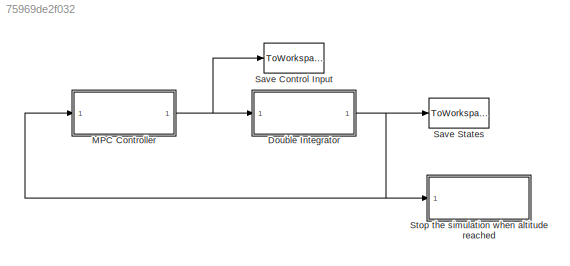
MODEL slx_75969de2f032
KIND model
CONFIG AbsTol = auto
CONFIG EnableMultiTasking = off
CONFIG FixedStep = tstep
CONFIG InitFcn = initSim;
CONFIG MaxStep = auto
CONFIG MinStep = auto
CONFIG RelTol = 1e-3
CONFIG SampleTimeConstraint = Unconstrained
CONFIG Solver = ode1
CONFIG SolverName = ode1
CONFIG StartTime = 0.0
CONFIG StopFcn = plotSimSolution;
CONFIG StopTime = 6
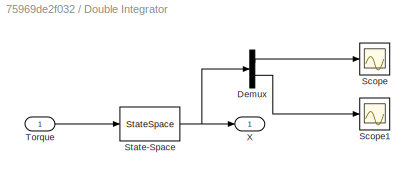
BLOCK [SubSystem] Double Integrator
  Ports = [1, 1]
  RequestExecContextInheritance = off
BLOCK [Demux] Double Integrator/Demux
  DisplayOption = bar
  Outputs = 2
  Ports = [1, 2]
BLOCK [Scope] Double Integrator/Scope
  Floating = off
  NumInputPorts = 1
  Ports = [1]
  ScopeSpecificationString = Simulink.scopes.TimeScopeBlockCfg('CurrentConfiguration', extmgr.ConfigurationSet(extmgr.Configuration('Core','General UI',true),extmgr.Configuration('Core','Source UI',true),extmgr.Configuration('Sources','WiredSimulink',true),extmgr.Configuration('Visuals','Time Domain',true,'SerializedDisplays',{struct('MinYLimReal','-0.6125','MaxYLimReal','5.5125','YLabelReal','','MinYLimMag','0.00000','MaxYLi...<+1348ch>
BLOCK [Scope] Double Integrator/Scope1
  Floating = off
  NumInputPorts = 1
  Ports = [1]
  ScopeSpecificationString = Simulink.scopes.TimeScopeBlockCfg('CurrentConfiguration', extmgr.ConfigurationSet(extmgr.Configuration('Core','General UI',true),extmgr.Configuration('Core','Source UI',true),extmgr.Configuration('Sources','WiredSimulink',true,'DataLoggingVariableName','ScopeData1'),extmgr.Configuration('Visuals','Time Domain',true),extmgr.Configuration('Tools','Plot Navigation',true),extmgr.Configuration('Tools',...<+40ch>
BLOCK [StateSpace] Double Integrator/State-Space
  A = [0 1;0 0]
  B = [0;1]
  C = [1 0;0 1]
  D = [0;0]
  InitialCondition = 0
  Ports = [1, 1]
BLOCK [Inport] Double Integrator/Torque
  IconDisplay = Port number
BLOCK [Outport] Double Integrator/X
  IconDisplay = Port number
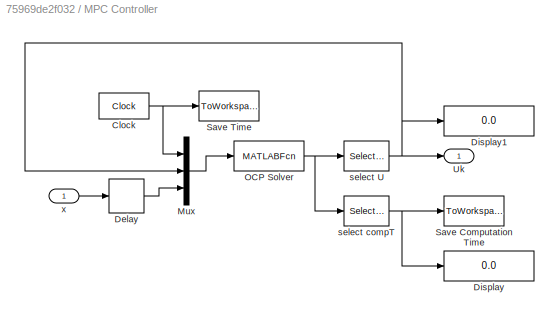
BLOCK [SubSystem] MPC Controller 
  Ports = [1, 1]
  RequestExecContextInheritance = off
BLOCK [Clock] MPC Controller /Clock
  DisplayTime = on
BLOCK [Delay] MPC Controller /Delay
  DelayLength = 1
  InitialCondition = [problem.states.x0]
  InputPortMap = u0
  Ports = [1, 1]
BLOCK [Display] MPC Controller /Display
  Decimation = 1
  Ports = [1]
BLOCK [Display] MPC Controller /Display1
  Decimation = 1
  Ports = [1]
BLOCK [Mux] MPC Controller /Mux
  DisplayOption = bar
  Inputs = 3
  Ports = [3, 1]
BLOCK [MATLABFcn] MPC Controller /OCP Solver
  MATLABFcn = ICLOCS_NLPSolver
  OutputDimensions = m+2
  Ports = [1, 1]
BLOCK [ToWorkspace] MPC Controller /Save Computation Time 
  FixptAsFi = on
  MaxDataPoints = inf
  Ports = [1]
  SampleTime = tstep
  Save2DSignal = 2-D array (concatenate along first dimension)
  VariableName = Comp_Time
BLOCK [ToWorkspace] MPC Controller /Save Time
  FixptAsFi = on
  MaxDataPoints = inf
  Ports = [1]
  SampleTime = -1
  Save2DSignal = 2-D array (concatenate along first dimension)
  VariableName = T
BLOCK [Outport] MPC Controller /Uk
  IconDisplay = Port number
BLOCK [Selector] MPC Controller /select U
  IndexOptions = Index vector (dialog)
  Indices = 3:m+2
  OutputSizes = 1
  Ports = [1, 1]
BLOCK [Selector] MPC Controller /select compT
  IndexOptions = Index vector (dialog)
  Indices = 2
  OutputSizes = 1
  Ports = [1, 1]
BLOCK [Inport] MPC Controller /x
  IconDisplay = Port number
BLOCK [ToWorkspace] Save Control Input
  FixptAsFi = on
  MaxDataPoints = inf
  Ports = [1]
  SampleTime = -1
  Save2DSignal = 2-D array (concatenate along first dimension)
  VariableName = U
BLOCK [ToWorkspace] Save States
  FixptAsFi = on
  MaxDataPoints = inf
  Ports = [1]
  SampleTime = -1
  Save2DSignal = 3-D array (concatenate along third dimension)
  VariableName = X
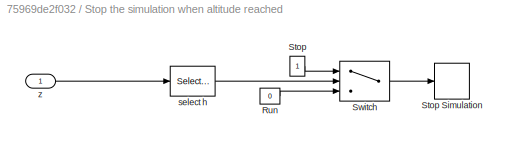
BLOCK [SubSystem] Stop the simulation when altitude reached 
  Ports = [1]
  RequestExecContextInheritance = off
BLOCK [Constant] Stop the simulation when altitude reached /Run
  Value = 0
BLOCK [Constant] Stop the simulation when altitude reached /Stop
BLOCK [Stop] Stop the simulation when altitude reached /Stop Simulation
BLOCK [Switch] Stop the simulation when altitude reached /Switch
  Criteria = u2 > Threshold
  InputSameDT = off
  SaturateOnIntegerOverflow = off
  Threshold = problem.states.xfu(1)-0.1
BLOCK [Selector] Stop the simulation when altitude reached /select h
  IndexOptions = Index vector (dialog)
  Indices = 1
  OutputSizes = 1
  Ports = [1, 1]
BLOCK [Inport] Stop the simulation when altitude reached /z
  IconDisplay = Port number
LINE Double Integrator/Demux:1 -> Double Integrator/Scope:1
LINE Double Integrator/Demux:2 -> Double Integrator/Scope1:1
NET Double Integrator/State-Space:1 -> Double Integrator/Demux:1, Double Integrator/X:1
LINE Double Integrator/Torque:1 -> Double Integrator/State-Space:1
NET Double Integrator:1 -> MPC Controller :1, Save States:1, Stop the simulation when altitude reached :1
NET MPC Controller /Clock:1 -> MPC Controller /Mux:1, MPC Controller /Save Time:1
LINE MPC Controller /Delay:1 -> MPC Controller /Mux:3
LINE MPC Controller /Mux:1 -> MPC Controller /OCP Solver:1
NET MPC Controller /OCP Solver:1 -> MPC Controller /select U:1, MPC Controller /select compT:1
NET MPC Controller /select U:1 -> MPC Controller /Display1:1, MPC Controller /Mux:2, MPC Controller /Uk:1
NET MPC Controller /select compT:1 -> MPC Controller /Display:1, MPC Controller /Save Computation Time :1
LINE MPC Controller /x:1 -> MPC Controller /Delay:1
NET MPC Controller :1 -> Double Integrator:1, Save Control Input:1
LINE Stop the simulation when altitude reached /Run:1 -> Stop the simulation when altitude reached /Switch:3
LINE Stop the simulation when altitude reached /Stop:1 -> Stop the simulation when altitude reached /Switch:1
LINE Stop the simulation when altitude reached /Switch:1 -> Stop the simulation when altitude reached /Stop Simulation:1
LINE Stop the simulation when altitude reached /select h:1 -> Stop the simulation when altitude reached /Switch:2
LINE Stop the simulation when altitude reached /z:1 -> Stop the simulation when altitude reached /select h:1
note: NET lines group one-source signal fan-out (src -> all destinations, sorted); 1:1 wires keep LINE
